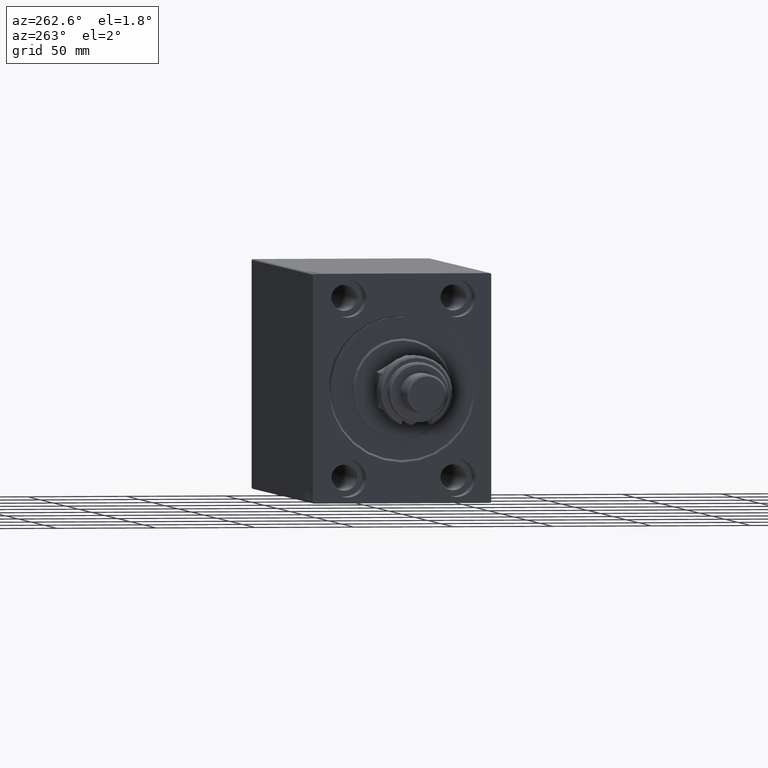
[diagram: clean part render]
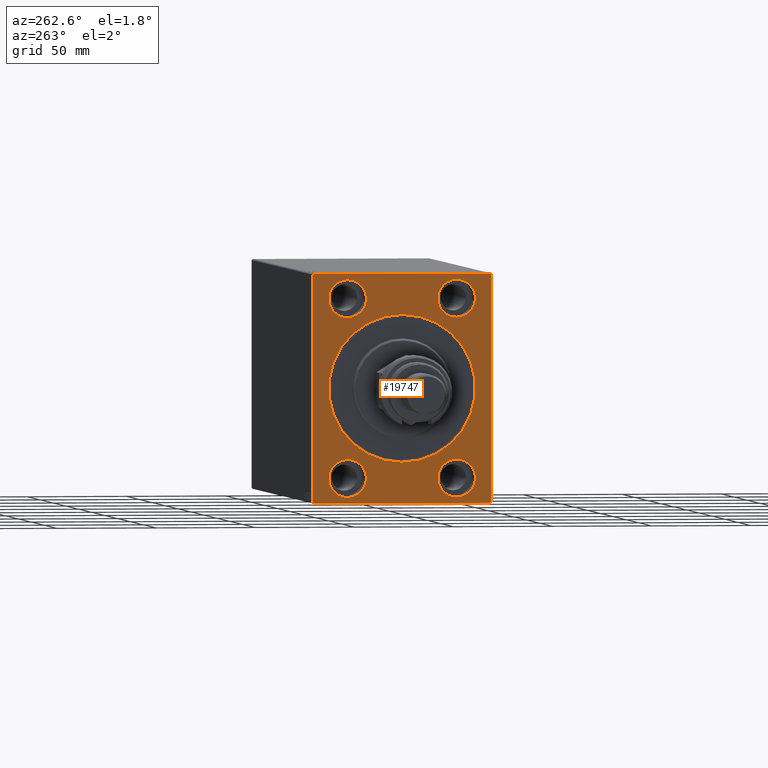
[diagram: same view with one face highlighted and labeled with its STEP entity id]
A machine part, auxiliary view. The second image highlights one B-rep face of the part: STEP entity #19747.
In plain terms, the highlighted planar face has unit normal (1, 0, 0).
Its self-contained STEP definition (entity closure, byte-faithful):
#315 = VERTEX_POINT ( 'NONE', #35899 ) ;
#349 = CARTESIAN_POINT ( 'NONE',  ( 0.000000000000000000, -27.50000000000000000, -44.99999999999998579 ) ) ;
#373 = VERTEX_POINT ( 'NONE', #12505 ) ;
#559 = DIRECTION ( 'NONE',  ( -1.000000000000000000, 0.000000000000000000, 0.000000000000000000 ) ) ;
#614 = DIRECTION ( 'NONE',  ( -1.000000000000000000, 0.000000000000000000, 0.000000000000000000 ) ) ;
#792 = VERTEX_POINT ( 'NONE', #30847 ) ;
#1310 = EDGE_LOOP ( 'NONE', ( #45193, #14206 ) ) ;
#1608 = CIRCLE ( 'NONE', #7616, 9.500000000000001776 ) ;
#3237 = EDGE_LOOP ( 'NONE', ( #33504, #21256 ) ) ;
#3493 = DIRECTION ( 'NONE',  ( 0.000000000000000000, 0.000000000000000000, 1.000000000000000000 ) ) ;
#3573 = DIRECTION ( 'NONE',  ( -0.000000000000000000, 0.7071067811865474617, -0.7071067811865474617 ) ) ;
#3627 = EDGE_CURVE ( 'NONE', #13500, #6062, #8323, .T. ) ;
#4036 = ORIENTED_EDGE ( 'NONE', *, *, #36504, .T. ) ;
#4897 = CARTESIAN_POINT ( 'NONE',  ( 0.000000000000000000, 0.000000000000000000, 37.00000000000000711 ) ) ;
#4986 = EDGE_CURVE ( 'NONE', #15205, #19132, #15171, .T. ) ;
#5055 = FACE_BOUND ( 'NONE', #19188, .T. ) ;
#5096 = VERTEX_POINT ( 'NONE', #17603 ) ;
#5166 = EDGE_LOOP ( 'NONE', ( #15721, #46129 ) ) ;
#5210 = EDGE_CURVE ( 'NONE', #6062, #13500, #25685, .T. ) ;
#5358 = AXIS2_PLACEMENT_3D ( 'NONE', #33137, #35976, #15221 ) ;
#5377 = LINE ( 'NONE', #9141, #12095 ) ;
#5766 = VECTOR ( 'NONE', #23552, 1000.000000000000000 ) ;
#6062 = VERTEX_POINT ( 'NONE', #20870 ) ;
#6121 = VECTOR ( 'NONE', #31191, 1000.000000000000000 ) ;
#6358 = DIRECTION ( 'NONE',  ( -1.000000000000000000, 0.000000000000000000, 0.000000000000000000 ) ) ;
#6623 = CARTESIAN_POINT ( 'NONE',  ( 0.000000000000000000, 44.50000000000005684, 57.50000000000000711 ) ) ;
#6634 = EDGE_CURVE ( 'NONE', #36540, #20736, #14579, .T. ) ;
#6980 = CARTESIAN_POINT ( 'NONE',  ( 0.000000000000000000, 27.49999999999998934, -54.49999999999998579 ) ) ;
#7409 = DIRECTION ( 'NONE',  ( 1.000000000000000000, 0.000000000000000000, 0.000000000000000000 ) ) ;
#7616 = AXIS2_PLACEMENT_3D ( 'NONE', #28620, #559, #14012 ) ;
#7641 = DIRECTION ( 'NONE',  ( -1.000000000000000000, 0.000000000000000000, 0.000000000000000000 ) ) ;
#7816 = CIRCLE ( 'NONE', #45479, 9.500000000000001776 ) ;
#7955 = CARTESIAN_POINT ( 'NONE',  ( 0.000000000000000000, 44.50000000000004263, -57.50000000000000711 ) ) ;
#8323 = CIRCLE ( 'NONE', #32439, 9.500000000000001776 ) ;
#8901 = AXIS2_PLACEMENT_3D ( 'NONE', #27367, #6358, #41768 ) ;
#9141 = CARTESIAN_POINT ( 'NONE',  ( 0.000000000000000000, 45.00000000000001421, -57.00000000000006395 ) ) ;
#10246 = ORIENTED_EDGE ( 'NONE', *, *, #5210, .F. ) ;
#10790 = CARTESIAN_POINT ( 'NONE',  ( 0.000000000000000000, 45.00000000000000000, 57.50000000000000711 ) ) ;
#10807 = AXIS2_PLACEMENT_3D ( 'NONE', #14769, #614, #14996 ) ;
#10835 = ORIENTED_EDGE ( 'NONE', *, *, #31855, .T. ) ;
#11227 = ORIENTED_EDGE ( 'NONE', *, *, #16506, .T. ) ;
#11764 = AXIS2_PLACEMENT_3D ( 'NONE', #21800, #7409, #32898 ) ;
#12095 = VECTOR ( 'NONE', #38150, 1000.000000000000114 ) ;
#12231 = VECTOR ( 'NONE', #28523, 1000.000000000000000 ) ;
#12505 = CARTESIAN_POINT ( 'NONE',  ( 0.000000000000000000, 4.531193156845207581E-15, -37.00000000000000711 ) ) ;
#13306 = ORIENTED_EDGE ( 'NONE', *, *, #33862, .T. ) ;
#13408 = DIRECTION ( 'NONE',  ( 0.000000000000000000, -1.000000000000000000, -1.541976423090495387E-16 ) ) ;
#13500 = VERTEX_POINT ( 'NONE', #36814 ) ;
#13853 = CIRCLE ( 'NONE', #10807, 9.500000000000001776 ) ;
#13924 = CARTESIAN_POINT ( 'NONE',  ( 0.000000000000000000, -27.49999999999998934, 45.00000000000000711 ) ) ;
#14012 = DIRECTION ( 'NONE',  ( 0.000000000000000000, 0.000000000000000000, 1.000000000000000000 ) ) ;
#14131 = CIRCLE ( 'NONE', #29181, 9.500000000000001776 ) ;
#14206 = ORIENTED_EDGE ( 'NONE', *, *, #40033, .F. ) ;
#14579 = LINE ( 'NONE', #28957, #22698 ) ;
#14650 = VERTEX_POINT ( 'NONE', #36101 ) ;
#14769 = CARTESIAN_POINT ( 'NONE',  ( 0.000000000000000000, 27.49999999999998934, -44.99999999999998579 ) ) ;
#14956 = DIRECTION ( 'NONE',  ( -0.000000000000000000, -0.7071067811865474617, 0.7071067811865474617 ) ) ;
#14996 = DIRECTION ( 'NONE',  ( 0.000000000000000000, 0.000000000000000000, 1.000000000000000000 ) ) ;
#15047 = CARTESIAN_POINT ( 'NONE',  ( 0.000000000000000000, 0.000000000000000000, 0.000000000000000000 ) ) ;
#15171 = CIRCLE ( 'NONE', #33989, 9.500000000000001776 ) ;
#15205 = VERTEX_POINT ( 'NONE', #25955 ) ;
#15221 = DIRECTION ( 'NONE',  ( 0.000000000000000000, 0.000000000000000000, 1.000000000000000000 ) ) ;
#15721 = ORIENTED_EDGE ( 'NONE', *, *, #30304, .F. ) ;
#15916 = FACE_BOUND ( 'NONE', #31836, .T. ) ;
#15949 = ORIENTED_EDGE ( 'NONE', *, *, #20627, .F. ) ;
#16506 = EDGE_CURVE ( 'NONE', #43982, #373, #21526, .T. ) ;
#17188 = CARTESIAN_POINT ( 'NONE',  ( 0.000000000000000000, -45.00000000000000000, 57.49999999999999289 ) ) ;
#17266 = ORIENTED_EDGE ( 'NONE', *, *, #6634, .F. ) ;
#17603 = CARTESIAN_POINT ( 'NONE',  ( 0.000000000000000000, -44.49999999999994316, 57.49999999999999289 ) ) ;
#17949 = DIRECTION ( 'NONE',  ( -1.000000000000000000, 0.000000000000000000, 0.000000000000000000 ) ) ;
#18260 = EDGE_CURVE ( 'NONE', #27348, #39015, #24241, .T. ) ;
#18502 = CARTESIAN_POINT ( 'NONE',  ( 0.000000000000000000, -44.50000000000005684, -57.50000000000000711 ) ) ;
#19132 = VERTEX_POINT ( 'NONE', #38735 ) ;
#19188 = EDGE_LOOP ( 'NONE', ( #10246, #30265 ) ) ;
#19198 = ORIENTED_EDGE ( 'NONE', *, *, #34695, .F. ) ;
#19390 = VECTOR ( 'NONE', #13408, 1000.000000000000000 ) ;
#19442 = CARTESIAN_POINT ( 'NONE',  ( 0.000000000000000000, 0.000000000000000000, 0.000000000000000000 ) ) ;
#19747 = ADVANCED_FACE ( 'NONE', ( #15916, #30053, #33832, #22269, #5055, #44457 ), #26745, .F. ) ;
#20372 = CARTESIAN_POINT ( 'NONE',  ( 0.000000000000000000, 45.00000000000001421, -57.00000000000006395 ) ) ;
#20627 = EDGE_CURVE ( 'NONE', #315, #5096, #20935, .T. ) ;
#20648 = EDGE_CURVE ( 'NONE', #41760, #35760, #14131, .T. ) ;
#20736 = VERTEX_POINT ( 'NONE', #7955 ) ;
#20870 = CARTESIAN_POINT ( 'NONE',  ( 0.000000000000000000, -27.50000000000000000, -35.49999999999998579 ) ) ;
#20935 = LINE ( 'NONE', #10790, #19390 ) ;
#21256 = ORIENTED_EDGE ( 'NONE', *, *, #22839, .F. ) ;
#21480 = EDGE_CURVE ( 'NONE', #373, #43982, #26210, .T. ) ;
#21526 = CIRCLE ( 'NONE', #11764, 37.00000000000000711 ) ;
#21800 = CARTESIAN_POINT ( 'NONE',  ( 0.000000000000000000, 0.000000000000000000, 0.000000000000000000 ) ) ;
#22034 = DIRECTION ( 'NONE',  ( 0.000000000000000000, 0.000000000000000000, 1.000000000000000000 ) ) ;
#22269 = FACE_BOUND ( 'NONE', #3237, .T. ) ;
#22698 = VECTOR ( 'NONE', #36725, 1000.000000000000000 ) ;
#22839 = EDGE_CURVE ( 'NONE', #35760, #41760, #23974, .T. ) ;
#23552 = DIRECTION ( 'NONE',  ( 0.000000000000000000, 0.000000000000000000, -1.000000000000000000 ) ) ;
#23974 = CIRCLE ( 'NONE', #8901, 9.500000000000001776 ) ;
#24180 = CARTESIAN_POINT ( 'NONE',  ( 0.000000000000000000, -45.00000000000000000, 56.99999999999999289 ) ) ;
#24241 = LINE ( 'NONE', #17188, #5766 ) ;
#25639 = DIRECTION ( 'NONE',  ( 0.000000000000000000, 0.000000000000000000, -1.000000000000000000 ) ) ;
#25685 = CIRCLE ( 'NONE', #5358, 9.500000000000001776 ) ;
#25955 = CARTESIAN_POINT ( 'NONE',  ( 0.000000000000000000, -27.49999999999998934, 35.50000000000000711 ) ) ;
#26024 = ORIENTED_EDGE ( 'NONE', *, *, #21480, .T. ) ;
#26210 = CIRCLE ( 'NONE', #43546, 37.00000000000000711 ) ;
#26413 = DIRECTION ( 'NONE',  ( -1.000000000000000000, 0.000000000000000000, 0.000000000000000000 ) ) ;
#26492 = LINE ( 'NONE', #18502, #38515 ) ;
#26726 = LINE ( 'NONE', #43747, #6121 ) ;
#26745 = PLANE ( 'NONE',  #38932 ) ;
#27348 = VERTEX_POINT ( 'NONE', #24180 ) ;
#27367 = CARTESIAN_POINT ( 'NONE',  ( 0.000000000000000000, 27.50000000000001066, 45.00000000000000711 ) ) ;
#28523 = DIRECTION ( 'NONE',  ( -0.000000000000000000, 0.7071067811865672237, 0.7071067811865279218 ) ) ;
#28620 = CARTESIAN_POINT ( 'NONE',  ( 0.000000000000000000, -27.49999999999998934, 45.00000000000000711 ) ) ;
#28957 = CARTESIAN_POINT ( 'NONE',  ( 0.000000000000000000, -45.00000000000000000, -57.50000000000000711 ) ) ;
#29181 = AXIS2_PLACEMENT_3D ( 'NONE', #35807, #46426, #3493 ) ;
#30053 = FACE_BOUND ( 'NONE', #1310, .T. ) ;
#30265 = ORIENTED_EDGE ( 'NONE', *, *, #3627, .F. ) ;
#30293 = DIRECTION ( 'NONE',  ( 1.000000000000000000, 0.000000000000000000, 0.000000000000000000 ) ) ;
#30304 = EDGE_CURVE ( 'NONE', #19132, #15205, #1608, .T. ) ;
#30521 = DIRECTION ( 'NONE',  ( 0.000000000000000000, 0.000000000000000000, -1.000000000000000000 ) ) ;
#30847 = CARTESIAN_POINT ( 'NONE',  ( 0.000000000000000000, 27.49999999999998934, -35.49999999999998579 ) ) ;
#31191 = DIRECTION ( 'NONE',  ( 0.000000000000000000, -1.206764157201257045E-16, 1.000000000000000000 ) ) ;
#31415 = LINE ( 'NONE', #6623, #40753 ) ;
#31836 = EDGE_LOOP ( 'NONE', ( #11227, #26024 ) ) ;
#31855 = EDGE_CURVE ( 'NONE', #40571, #20736, #5377, .T. ) ;
#32439 = AXIS2_PLACEMENT_3D ( 'NONE', #349, #7641, #22034 ) ;
#32785 = DIRECTION ( 'NONE',  ( 0.000000000000000000, 0.000000000000000000, 1.000000000000000000 ) ) ;
#32898 = DIRECTION ( 'NONE',  ( 0.000000000000000000, 0.000000000000000000, -1.000000000000000000 ) ) ;
#32972 = DIRECTION ( 'NONE',  ( 1.000000000000000000, 0.000000000000000000, 0.000000000000000000 ) ) ;
#33137 = CARTESIAN_POINT ( 'NONE',  ( 0.000000000000000000, -27.50000000000000000, -44.99999999999998579 ) ) ;
#33353 = VERTEX_POINT ( 'NONE', #6980 ) ;
#33504 = ORIENTED_EDGE ( 'NONE', *, *, #20648, .F. ) ;
#33832 = FACE_BOUND ( 'NONE', #5166, .T. ) ;
#33862 = EDGE_CURVE ( 'NONE', #315, #14650, #31415, .T. ) ;
#33989 = AXIS2_PLACEMENT_3D ( 'NONE', #13924, #17949, #32785 ) ;
#34686 = EDGE_CURVE ( 'NONE', #36540, #39015, #26492, .T. ) ;
#34695 = EDGE_CURVE ( 'NONE', #40571, #14650, #26726, .T. ) ;
#35760 = VERTEX_POINT ( 'NONE', #38549 ) ;
#35807 = CARTESIAN_POINT ( 'NONE',  ( 0.000000000000000000, 27.50000000000001066, 45.00000000000000711 ) ) ;
#35899 = CARTESIAN_POINT ( 'NONE',  ( 0.000000000000000000, 44.50000000000005684, 57.50000000000000711 ) ) ;
#35976 = DIRECTION ( 'NONE',  ( -1.000000000000000000, 0.000000000000000000, 0.000000000000000000 ) ) ;
#36101 = CARTESIAN_POINT ( 'NONE',  ( 0.000000000000000000, 45.00000000000000000, 57.00000000000003553 ) ) ;
#36303 = LINE ( 'NONE', #40074, #12231 ) ;
#36504 = EDGE_CURVE ( 'NONE', #27348, #5096, #36303, .T. ) ;
#36540 = VERTEX_POINT ( 'NONE', #42938 ) ;
#36725 = DIRECTION ( 'NONE',  ( 0.000000000000000000, 1.000000000000000000, 0.000000000000000000 ) ) ;
#36814 = CARTESIAN_POINT ( 'NONE',  ( 0.000000000000000000, -27.50000000000000000, -54.49999999999998579 ) ) ;
#38150 = DIRECTION ( 'NONE',  ( 0.000000000000000000, -0.7071067811865474617, -0.7071067811865474617 ) ) ;
#38515 = VECTOR ( 'NONE', #14956, 1000.000000000000114 ) ;
#38549 = CARTESIAN_POINT ( 'NONE',  ( 0.000000000000000000, 27.50000000000001066, 35.50000000000000711 ) ) ;
#38735 = CARTESIAN_POINT ( 'NONE',  ( 0.000000000000000000, -27.49999999999998934, 54.50000000000000711 ) ) ;
#38932 = AXIS2_PLACEMENT_3D ( 'NONE', #19442, #30293, #30521 ) ;
#39015 = VERTEX_POINT ( 'NONE', #40273 ) ;
#40033 = EDGE_CURVE ( 'NONE', #33353, #792, #7816, .T. ) ;
#40074 = CARTESIAN_POINT ( 'NONE',  ( 0.000000000000000000, -45.00000000000000000, 56.99999999999999289 ) ) ;
#40273 = CARTESIAN_POINT ( 'NONE',  ( 0.000000000000000000, -45.00000000000000000, -57.00000000000006395 ) ) ;
#40284 = EDGE_CURVE ( 'NONE', #792, #33353, #13853, .T. ) ;
#40567 = CARTESIAN_POINT ( 'NONE',  ( 0.000000000000000000, 27.49999999999998934, -44.99999999999998579 ) ) ;
#40571 = VERTEX_POINT ( 'NONE', #20372 ) ;
#40753 = VECTOR ( 'NONE', #3573, 1000.000000000000114 ) ;
#40804 = DIRECTION ( 'NONE',  ( 0.000000000000000000, 0.000000000000000000, 1.000000000000000000 ) ) ;
#41107 = EDGE_LOOP ( 'NONE', ( #44269, #4036, #15949, #13306, #19198, #10835, #17266, #45578 ) ) ;
#41760 = VERTEX_POINT ( 'NONE', #44760 ) ;
#41768 = DIRECTION ( 'NONE',  ( 0.000000000000000000, 0.000000000000000000, 1.000000000000000000 ) ) ;
#42938 = CARTESIAN_POINT ( 'NONE',  ( 0.000000000000000000, -44.50000000000005684, -57.50000000000000711 ) ) ;
#43546 = AXIS2_PLACEMENT_3D ( 'NONE', #15047, #32972, #25639 ) ;
#43747 = CARTESIAN_POINT ( 'NONE',  ( 0.000000000000000000, 45.00000000000001421, -57.50000000000000711 ) ) ;
#43982 = VERTEX_POINT ( 'NONE', #4897 ) ;
#44269 = ORIENTED_EDGE ( 'NONE', *, *, #18260, .F. ) ;
#44457 = FACE_OUTER_BOUND ( 'NONE', #41107, .T. ) ;
#44760 = CARTESIAN_POINT ( 'NONE',  ( 0.000000000000000000, 27.50000000000001066, 54.50000000000000711 ) ) ;
#45193 = ORIENTED_EDGE ( 'NONE', *, *, #40284, .F. ) ;
#45479 = AXIS2_PLACEMENT_3D ( 'NONE', #40567, #26413, #40804 ) ;
#45578 = ORIENTED_EDGE ( 'NONE', *, *, #34686, .T. ) ;
#46129 = ORIENTED_EDGE ( 'NONE', *, *, #4986, .F. ) ;
#46426 = DIRECTION ( 'NONE',  ( -1.000000000000000000, 0.000000000000000000, 0.000000000000000000 ) ) ;